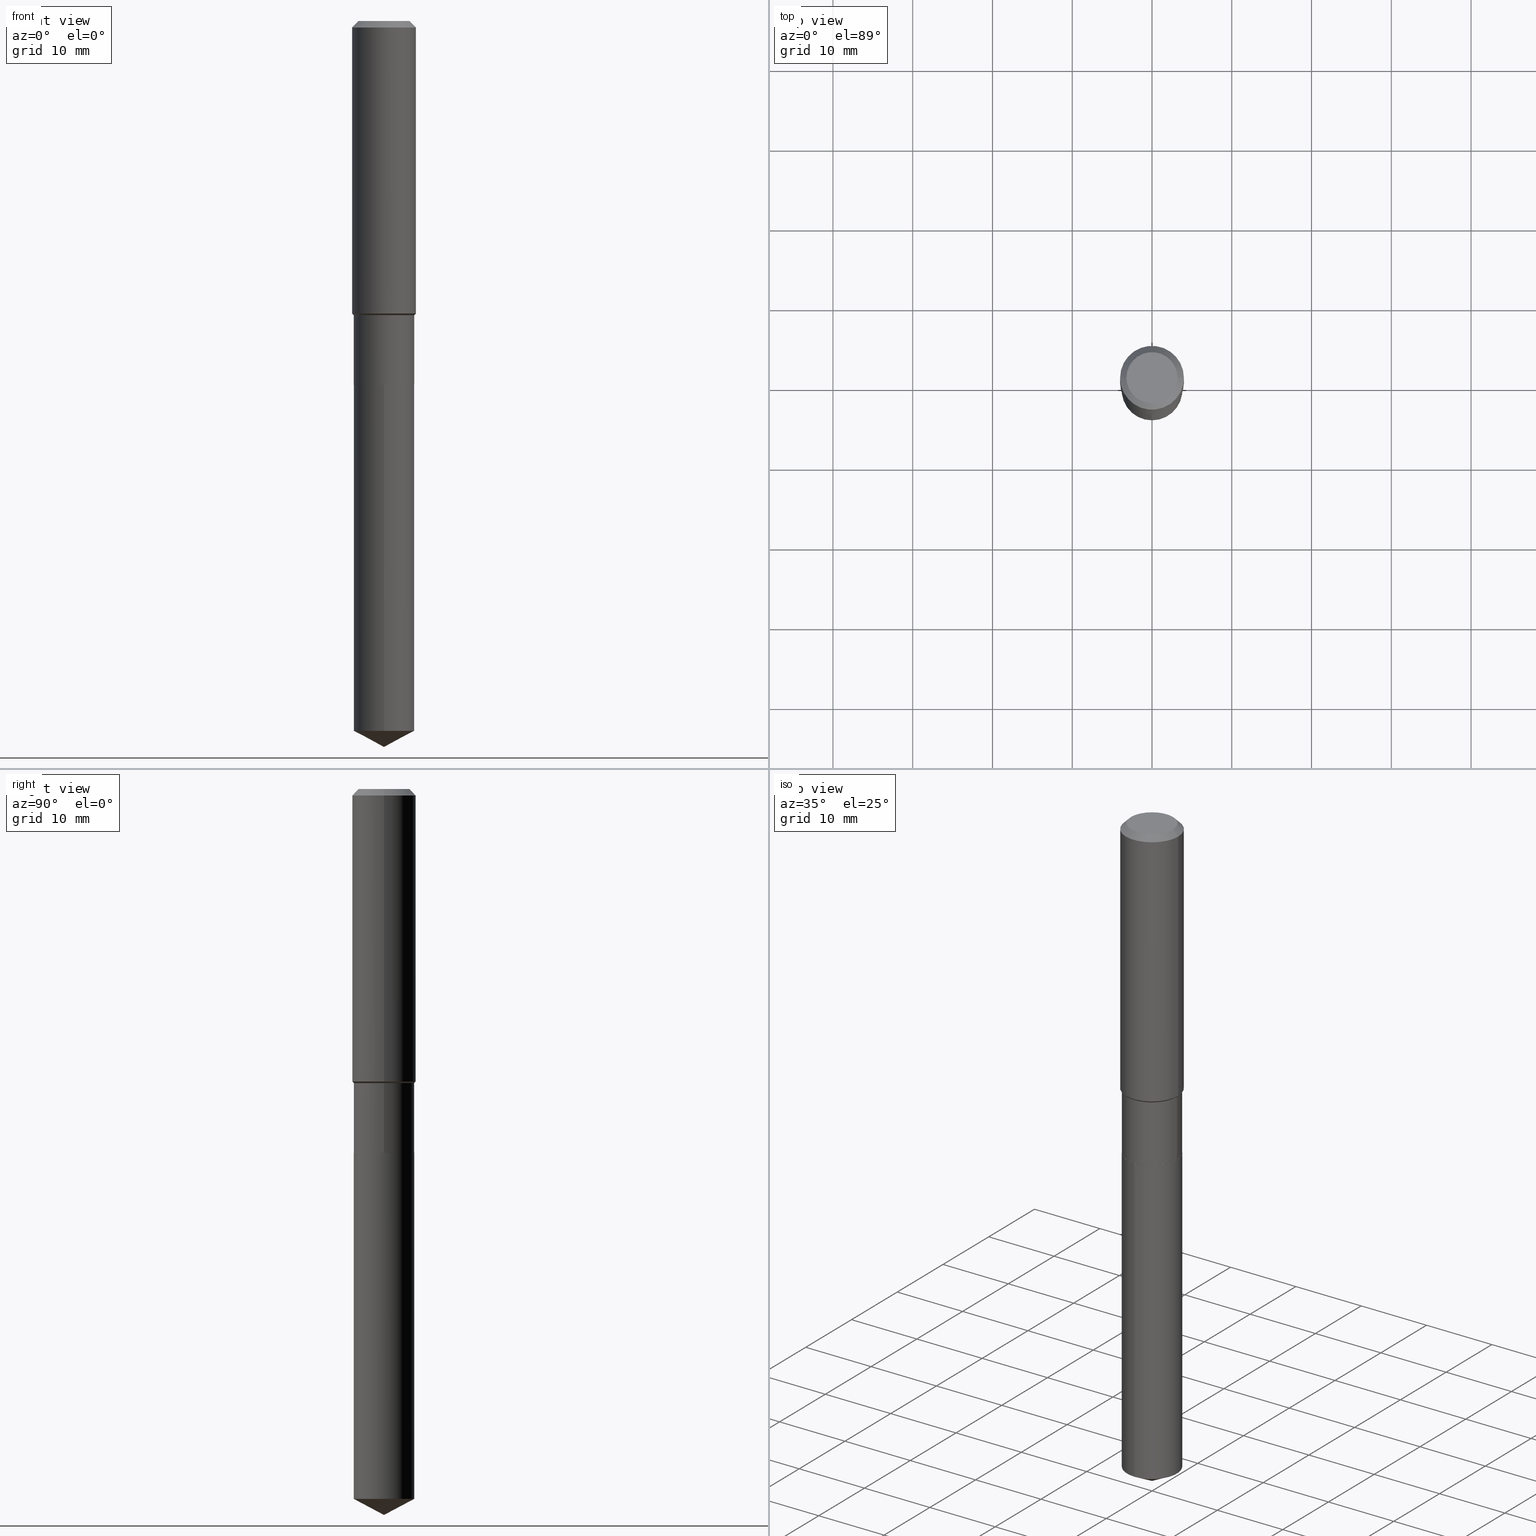
[diagram: canonical four-view strip — front | top / right | iso, engineering-drawing reading convention]
A machine part, canonical four-view strip (front | top / right | iso — engineering-drawing reading convention). The complete STEP part file that produces these views, byte-faithful:
ISO-10303-21;
HEADER;
FILE_DESCRIPTION (( 'STEP AP203' ),
    '1' );
FILE_NAME ('65046.STEP',
    '2024-04-24T20:08:33',
    ( '' ),
    ( '' ),
    'SwSTEP 2.0',
    'SolidWorks 2023',
    '' );
FILE_SCHEMA (( 'CONFIG_CONTROL_DESIGN' ));
ENDSEC;

DATA;
#1 = CARTESIAN_POINT ( 'NONE',  ( 8.761479529919138768E-29, -1.250878922385509424E-14, -3.582699999999999996 ) ) ;
#2 = ORIENTED_EDGE ( 'NONE', *, *, #140, .F. ) ;
#3 = DIRECTION ( 'NONE',  ( 1.000000000000000000, -6.982962677686265922E-15, 4.876176775795935793E-29 ) ) ;
#4 = ORIENTED_EDGE ( 'NONE', *, *, #388, .T. ) ;
#5 = AXIS2_PLACEMENT_3D ( 'NONE', #137, #441, #219 ) ;
#6 = APPLICATION_PROTOCOL_DEFINITION ( 'international standard', 'config_control_design', 1994, #118 ) ;
#7 = EDGE_LOOP ( 'NONE', ( #65, #306 ) ) ;
#8 = DIRECTION ( 'NONE',  ( -2.445496282111016884E-29, 3.491441991753452634E-15, 1.000000000000000000 ) ) ;
#9 = ORIENTED_EDGE ( 'NONE', *, *, #388, .F. ) ;
#10 = CARTESIAN_POINT ( 'NONE',  ( 8.566906304021000333E-29, -1.223113754117293109E-14, -3.503156269023443237 ) ) ;
#11 = VERTEX_POINT ( 'NONE', #308 ) ;
#12 = AXIS2_PLACEMENT_3D ( 'NONE', #458, #346, #16 ) ;
#13 = ADVANCED_FACE ( 'NONE', ( #300 ), #162, .T. ) ;
#14 = AXIS2_PLACEMENT_3D ( 'NONE', #482, #138, #329 ) ;
#15 = CARTESIAN_POINT ( 'NONE',  ( 7.703226739483226971E-31, -1.099816621735597538E-16, -0.03150000000000019451 ) ) ;
#16 = DIRECTION ( 'NONE',  ( -1.000000000000000000, 6.982962677686265922E-15, 0.000000000000000000 ) ) ;
#17 = VERTEX_POINT ( 'NONE', #82 ) ;
#18 = APPROVAL_DATE_TIME ( #439, #197 ) ;
#19 = CARTESIAN_POINT ( 'NONE',  ( 3.529545127967007664E-29, -5.039255016352311783E-15, -1.443299999999999805 ) ) ;
#20 = CONICAL_SURFACE ( 'NONE', #366, 0.1491000000000000103, 0.7853981633975507526 ) ;
#21 = AXIS2_PLACEMENT_3D ( 'NONE', #147, #292, #448 ) ;
#22 = CARTESIAN_POINT ( 'NONE',  ( 0.1260000000000000009, -1.027466422270894443E-15, 3.860086710919128072E-18 ) ) ;
#23 = DIRECTION ( 'NONE',  ( -6.982962677686265922E-15, -1.000000000000000000, 3.652203200085913145E-15 ) ) ;
#24 = DATE_AND_TIME ( #229, #302 ) ;
#25 = CARTESIAN_POINT ( 'NONE',  ( 1.062971932697195743E-15, 0.1495999999999937102, -1.795300000000000562 ) ) ;
#26 = ADVANCED_FACE ( 'NONE', ( #121 ), #20, .T. ) ;
#27 = VECTOR ( 'NONE', #158, 39.37007874015748143 ) ;
#28 = CARTESIAN_POINT ( 'NONE',  ( 0.1495999999999999830, -1.044651216581865404E-15, 7.294760456590720327E-30 ) ) ;
#29 = DIRECTION ( 'NONE',  ( -2.445468806185136877E-29, 3.491481338843145188E-15, 1.000000000000000000 ) ) ;
#30 = DIRECTION ( 'NONE',  ( -6.982962677686267499E-15, -1.000000000000000000, 3.541896320645549825E-15 ) ) ;
#31 = ORIENTED_EDGE ( 'NONE', *, *, #144, .F. ) ;
#32 = PERSON ( 'UNSPECIFIED', 'UNSPECIFIED', 'UNSPECIFIED', ('UNSPECIFIED'), ('UNSPECIFIED'), ('UNSPECIFIED') ) ;
#33 = CARTESIAN_POINT ( 'NONE',  ( 3.529545127967007664E-29, -5.039255016352311783E-15, -1.443299999999999805 ) ) ;
#34 = CIRCLE ( 'NONE', #310, 0.1491000000000000103 ) ;
#35 = AXIS2_PLACEMENT_3D ( 'NONE', #86, #457, #185 ) ;
#36 = DIRECTION ( 'NONE',  ( -1.000000000000000000, 6.982962677686265922E-15, -4.876176775795935793E-29 ) ) ;
#37 = ORIENTED_EDGE ( 'NONE', *, *, #474, .F. ) ;
#38 = DIRECTION ( 'NONE',  ( 1.000000000000000000, -6.982962677686265922E-15, 4.876281427513067258E-29 ) ) ;
#39 = ORIENTED_EDGE ( 'NONE', *, *, #463, .F. ) ;
#40 = CC_DESIGN_PERSON_AND_ORGANIZATION_ASSIGNMENT ( #468, #247, ( #204 ) ) ;
#41 = PERSON_AND_ORGANIZATION ( #32, #286 ) ;
#42 = MANIFOLD_SOLID_BREP ( 'Body-Move/Copy2[2]', #383 ) ;
#43 = VERTEX_POINT ( 'NONE', #303 ) ;
#44 = EDGE_CURVE ( 'NONE', #490, #115, #87, .T. ) ;
#45 = DIRECTION ( 'NONE',  ( -2.445468806185136597E-29, 3.491481338843145583E-15, 1.000000000000000000 ) ) ;
#46 = CARTESIAN_POINT ( 'NONE',  ( 4.390350147744175670E-29, -6.268256447625099205E-15, -1.795300000000000118 ) ) ;
#47 = ORIENTED_EDGE ( 'NONE', *, *, #344, .F. ) ;
#48 =( NAMED_UNIT ( * ) SI_UNIT ( $, .STERADIAN. ) SOLID_ANGLE_UNIT ( ) );
#49 = CARTESIAN_POINT ( 'NONE',  ( 0.1495999999999999830, -6.111488935511037930E-15, -1.451200000000000045 ) ) ;
#50 = DIRECTION ( 'NONE',  ( 1.000000000000000000, -6.982962677686267499E-15, 4.876176775795936353E-29 ) ) ;
#51 = DIRECTION ( 'NONE',  ( -6.165590087286839185E-15, -0.8829475928589269884, 0.4694715627858908058 ) ) ;
#52 = FACE_OUTER_BOUND ( 'NONE', #216, .T. ) ;
#53 = APPROVAL ( #150, 'UNSPECIFIED' ) ;
#54 = DIRECTION ( 'NONE',  ( -2.445468806185136597E-29, 3.491481338843145583E-15, 1.000000000000000000 ) ) ;
#55 = CLOSED_SHELL ( 'NONE', ( #268, #297, #206, #379, #294 ) ) ;
#56 = APPROVAL_DATE_TIME ( #24, #53 ) ;
#57 = DIRECTION ( 'NONE',  ( -2.445496282111016884E-29, 3.491441991753452634E-15, 1.000000000000000000 ) ) ;
#58 = APPROVAL_DATE_TIME ( #429, #319 ) ;
#59 = CARTESIAN_POINT ( 'NONE',  ( 3.548864331535870340E-29, -5.066837718929173118E-15, -1.451200000000000045 ) ) ;
#60 = EDGE_CURVE ( 'NONE', #187, #17, #85, .T. ) ;
#61 = DIRECTION ( 'NONE',  ( -0.7071067811865467956, 7.493145998870351005E-15, 0.7071067811865482389 ) ) ;
#62 = VECTOR ( 'NONE', #279, 39.37007874015748143 ) ;
#63 = CIRCLE ( 'NONE', #415, 0.1496000000000000107 ) ;
#64 = CARTESIAN_POINT ( 'NONE',  ( 4.390350147744175670E-29, -6.268256447625099205E-15, -1.795300000000000118 ) ) ;
#65 = ORIENTED_EDGE ( 'NONE', *, *, #400, .T. ) ;
#66 = APPLICATION_CONTEXT ( 'configuration controlled 3d designs of mechanical parts and assemblies' ) ;
#67 = DIRECTION ( 'NONE',  ( -2.445496282111016884E-29, 3.491441991753452634E-15, 1.000000000000000000 ) ) ;
#68 = ORIENTED_EDGE ( 'NONE', *, *, #109, .F. ) ;
#69 = DIRECTION ( 'NONE',  ( -2.445468806185136877E-29, 3.491481338843145188E-15, 1.000000000000000000 ) ) ;
#70 = FACE_OUTER_BOUND ( 'NONE', #110, .T. ) ;
#71 = AXIS2_PLACEMENT_3D ( 'NONE', #125, #263, #420 ) ;
#72 = CIRCLE ( 'NONE', #128, 0.1260000000000000009 ) ;
#73 = ORIENTED_EDGE ( 'NONE', *, *, #130, .F. ) ;
#74 = CARTESIAN_POINT ( 'NONE',  ( -0.1495999999999999830, -4.603702280245315850E-15, -1.451200000000000045 ) ) ;
#75 = ORIENTED_EDGE ( 'NONE', *, *, #84, .T. ) ;
#76 = EDGE_CURVE ( 'NONE', #348, #339, #190, .T. ) ;
#77 = DIRECTION ( 'NONE',  ( -2.445468806185136597E-29, 3.491481338843145583E-15, 1.000000000000000000 ) ) ;
#78 = CIRCLE ( 'NONE', #127, 0.1496000000000000107 ) ;
#79 = ORIENTED_EDGE ( 'NONE', *, *, #97, .T. ) ;
#80 = CONICAL_SURFACE ( 'NONE', #345, 0.1495999999999999830, 0.7853981633974472798 ) ;
#81 = DIRECTION ( 'NONE',  ( -2.445468806185136597E-29, 3.491481338843145583E-15, 1.000000000000000000 ) ) ;
#82 = CARTESIAN_POINT ( 'NONE',  ( 0.1575000000000001676, -6.139071638087900053E-15, -1.443299999999999805 ) ) ;
#83 = ADVANCED_FACE ( 'NONE', ( #455 ), #195, .T. ) ;
#84 = EDGE_CURVE ( 'NONE', #228, #260, #270, .T. ) ;
#85 = LINE ( 'NONE', #49, #384 ) ;
#86 = CARTESIAN_POINT ( 'NONE',  ( 0.000000000000000000, 0.000000000000000000, 0.000000000000000000 ) ) ;
#87 = LINE ( 'NONE', #464, #27 ) ;
#88 = VECTOR ( 'NONE', #29, 39.37007874015748143 ) ;
#89 = CARTESIAN_POINT ( 'NONE',  ( -0.1495999999999999830, -4.003865786232063558E-15, -1.451200000000000045 ) ) ;
#90 = DIRECTION ( 'NONE',  ( 0.7071067811865452413, -7.319954787623248157E-15, -0.7071067811865497932 ) ) ;
#91 = COORDINATED_UNIVERSAL_TIME_OFFSET ( 5, 0, .BEHIND. ) ;
#92 = EDGE_CURVE ( 'NONE', #373, #117, #201, .T. ) ;
#93 = CYLINDRICAL_SURFACE ( 'NONE', #177, 0.1496000000000000107 ) ;
#94 = CIRCLE ( 'NONE', #155, 0.1491000000000000103 ) ;
#95 = LOCAL_TIME ( 16, 8, 33.00000000000000000, #349 ) ;
#96 = PERSON_AND_ORGANIZATION ( #32, #286 ) ;
#97 = EDGE_CURVE ( 'NONE', #339, #148, #133, .T. ) ;
#98 = LINE ( 'NONE', #472, #336 ) ;
#99 = LINE ( 'NONE', #28, #134 ) ;
#100 = LINE ( 'NONE', #409, #171 ) ;
#101 = APPROVAL_PERSON_ORGANIZATION ( #265, #53, #296 ) ;
#102 = CARTESIAN_POINT ( 'NONE',  ( -4.719860820353100843E-47, 6.738710358733633822E-33, 1.930043355456229866E-18 ) ) ;
#103 = ORIENTED_EDGE ( 'NONE', *, *, #144, .T. ) ;
#104 = PRODUCT_DEFINITION_SHAPE ( 'NONE', 'NONE',  #412 ) ;
#105 = CC_DESIGN_PERSON_AND_ORGANIZATION_ASSIGNMENT ( #237, #434, ( #204 ) ) ;
#106 = CYLINDRICAL_SURFACE ( 'NONE', #21, 0.1495999999999999830 ) ;
#107 = EDGE_LOOP ( 'NONE', ( #2, #410, #236, #253 ) ) ;
#108 = DIRECTION ( 'NONE',  ( -2.445468806185136597E-29, 3.491481338843145583E-15, 1.000000000000000000 ) ) ;
#109 = EDGE_CURVE ( 'NONE', #17, #43, #203, .T. ) ;
#110 = EDGE_LOOP ( 'NONE', ( #408, #335, #31 ) ) ;
#111 = VECTOR ( 'NONE', #393, 39.37007874015748143 ) ;
#112 = CARTESIAN_POINT ( 'NONE',  ( 4.390350147744175670E-29, -6.268256447625099205E-15, -1.795300000000000118 ) ) ;
#113 = EDGE_CURVE ( 'NONE', #192, #187, #99, .T. ) ;
#114 = CONICAL_SURFACE ( 'NONE', #273, 0.1575000000000000011, 0.7853981633974450594 ) ;
#115 = VERTEX_POINT ( 'NONE', #25 ) ;
#116 = CARTESIAN_POINT ( 'NONE',  ( 1.062971932697195546E-15, 0.1495999999999878260, -3.503156269023444125 ) ) ;
#117 = VERTEX_POINT ( 'NONE', #478 ) ;
#118 = APPLICATION_CONTEXT ( 'configuration controlled 3d designs of mechanical parts and assemblies' ) ;
#119 = CYLINDRICAL_SURFACE ( 'NONE', #251, 0.1575000000000000844 ) ;
#120 = ORIENTED_EDGE ( 'NONE', *, *, #406, .F. ) ;
#121 = FACE_OUTER_BOUND ( 'NONE', #107, .T. ) ;
#122 = AXIS2_PLACEMENT_3D ( 'NONE', #33, #489, #178 ) ;
#123 =( LENGTH_UNIT ( ) NAMED_UNIT ( * ) SI_UNIT ( $, .METRE. ) );
#124 = ORIENTED_EDGE ( 'NONE', *, *, #391, .T. ) ;
#125 = CARTESIAN_POINT ( 'NONE',  ( 0.000000000000000000, 0.000000000000000000, 0.000000000000000000 ) ) ;
#126 = FACE_OUTER_BOUND ( 'NONE', #469, .T. ) ;
#127 = AXIS2_PLACEMENT_3D ( 'NONE', #164, #275, #161 ) ;
#128 = AXIS2_PLACEMENT_3D ( 'NONE', #290, #108, #38 ) ;
#129 = DIRECTION ( 'NONE',  ( 1.000000000000000000, -6.982962677686265133E-15, 0.000000000000000000 ) ) ;
#130 = EDGE_CURVE ( 'NONE', #148, #115, #243, .T. ) ;
#131 = CARTESIAN_POINT ( 'NONE',  ( 0.1496000000000000107, -7.311161923537544091E-15, -1.794800000000000173 ) ) ;
#132 = CALENDAR_DATE ( 2024, 24, 4 ) ;
#133 = LINE ( 'NONE', #238, #272 ) ;
#134 = VECTOR ( 'NONE', #248, 39.37007874015748143 ) ;
#135 = DATE_TIME_ROLE ( 'classification_date' ) ;
#136 = LINE ( 'NONE', #89, #375 ) ;
#137 = CARTESIAN_POINT ( 'NONE',  ( 3.548864331535870340E-29, -5.066837718929173118E-15, -1.451200000000000045 ) ) ;
#138 = DIRECTION ( 'NONE',  ( -2.445468806185136597E-29, 3.491481338843145583E-15, 1.000000000000000000 ) ) ;
#139 = ORIENTED_EDGE ( 'NONE', *, *, #313, .T. ) ;
#140 = EDGE_CURVE ( 'NONE', #11, #447, #98, .T. ) ;
#141 = AXIS2_PLACEMENT_3D ( 'NONE', #183, #252, #481 ) ;
#142 = CYLINDRICAL_SURFACE ( 'NONE', #186, 0.1496000000000000107 ) ;
#143 = EDGE_LOOP ( 'NONE', ( #182, #298, #222, #124 ) ) ;
#144 = EDGE_CURVE ( 'NONE', #339, #490, #78, .T. ) ;
#145 = DIRECTION ( 'NONE',  ( 6.982962677686265922E-15, 1.000000000000000000, -3.491441991753452240E-15 ) ) ;
#146 = ORIENTED_EDGE ( 'NONE', *, *, #60, .F. ) ;
#147 = CARTESIAN_POINT ( 'NONE',  ( 0.000000000000000000, 0.000000000000000000, 0.000000000000000000 ) ) ;
#148 = VERTEX_POINT ( 'NONE', #172 ) ;
#149 = MECHANICAL_CONTEXT ( 'NONE', #66, 'mechanical' ) ;
#150 = APPROVAL_STATUS ( 'not_yet_approved' ) ;
#151 = ORIENTED_EDGE ( 'NONE', *, *, #193, .T. ) ;
#152 = EDGE_CURVE ( 'NONE', #176, #11, #34, .T. ) ;
#153 = ORIENTED_EDGE ( 'NONE', *, *, #130, .T. ) ;
#154 = FACE_OUTER_BOUND ( 'NONE', #377, .T. ) ;
#155 = AXIS2_PLACEMENT_3D ( 'NONE', #246, #54, #357 ) ;
#156 = ORIENTED_EDGE ( 'NONE', *, *, #391, .F. ) ;
#157 = CIRCLE ( 'NONE', #386, 0.1496000000000000107 ) ;
#158 = DIRECTION ( 'NONE',  ( -2.445496282111017164E-29, 3.491441991753452240E-15, 1.000000000000000000 ) ) ;
#159 = ORIENTED_EDGE ( 'NONE', *, *, #97, .F. ) ;
#160 = PERSON_AND_ORGANIZATION ( #32, #286 ) ;
#161 = DIRECTION ( 'NONE',  ( -6.982962677686266711E-15, -1.000000000000000000, 3.652203200085913145E-15 ) ) ;
#162 = CONICAL_SURFACE ( 'NONE', #12, 0.1575000000000000011, 0.7853981633974450594 ) ;
#163 = CONICAL_SURFACE ( 'NONE', #461, 74.04434902938376695, 1.082104136236487824 ) ;
#164 = CARTESIAN_POINT ( 'NONE',  ( 8.566906304021000333E-29, -1.223113754117293109E-14, -3.503156269023443237 ) ) ;
#165 = DATE_TIME_ROLE ( 'creation_date' ) ;
#166 = CARTESIAN_POINT ( 'NONE',  ( -8.751795098308368870E-28, 1.249494862683404824E-13, 35.78737874015747877 ) ) ;
#167 = SECURITY_CLASSIFICATION_LEVEL ( 'unclassified' ) ;
#168 = DIRECTION ( 'NONE',  ( -0.7071067811866199593, 7.493145998870616062E-15, 0.7071067811864750752 ) ) ;
#169 = VECTOR ( 'NONE', #90, 39.37007874015748143 ) ;
#170 = AXIS2_PLACEMENT_3D ( 'NONE', #194, #342, #234 ) ;
#171 = VECTOR ( 'NONE', #69, 39.37007874015748143 ) ;
#172 = CARTESIAN_POINT ( 'NONE',  ( -1.044651216581821425E-15, -0.1496000000000062835, -1.795299999999999452 ) ) ;
#173 = CARTESIAN_POINT ( 'NONE',  ( -1.044651216581780009E-15, -0.1496000000000122510, -3.503156269023442793 ) ) ;
#174 = EDGE_LOOP ( 'NONE', ( #288, #184, #449, #156 ) ) ;
#175 = FACE_OUTER_BOUND ( 'NONE', #445, .T. ) ;
#176 = VERTEX_POINT ( 'NONE', #321 ) ;
#177 = AXIS2_PLACEMENT_3D ( 'NONE', #242, #57, #205 ) ;
#178 = DIRECTION ( 'NONE',  ( 1.000000000000000000, -6.982962677686267499E-15, 0.000000000000000000 ) ) ;
#179 = ORIENTED_EDGE ( 'NONE', *, *, #473, .F. ) ;
#180 = EDGE_CURVE ( 'NONE', #176, #192, #354, .T. ) ;
#181 = CARTESIAN_POINT ( 'NONE',  ( 7.703226739483226971E-31, -1.099816621735597538E-16, -0.03150000000000019451 ) ) ;
#182 = ORIENTED_EDGE ( 'NONE', *, *, #84, .F. ) ;
#183 = CARTESIAN_POINT ( 'NONE',  ( 7.703226739483226971E-31, -1.099816621735597538E-16, -0.03150000000000019451 ) ) ;
#184 = ORIENTED_EDGE ( 'NONE', *, *, #406, .T. ) ;
#185 = DIRECTION ( 'NONE',  ( 1.000000000000000000, 0.000000000000000000, 0.000000000000000000 ) ) ;
#186 = AXIS2_PLACEMENT_3D ( 'NONE', #254, #446, #416 ) ;
#187 = VERTEX_POINT ( 'NONE', #281 ) ;
#188 = LINE ( 'NONE', #452, #235 ) ;
#189 = CC_DESIGN_DATE_AND_TIME_ASSIGNMENT ( #278, #165, ( #412 ) ) ;
#190 = LINE ( 'NONE', #380, #394 ) ;
#191 = FACE_OUTER_BOUND ( 'NONE', #220, .T. ) ;
#192 = VERTEX_POINT ( 'NONE', #131 ) ;
#193 = EDGE_CURVE ( 'NONE', #360, #43, #136, .T. ) ;
#194 = CARTESIAN_POINT ( 'NONE',  ( 3.548864331535870340E-29, -5.066837718929173118E-15, -1.451200000000000045 ) ) ;
#195 = CYLINDRICAL_SURFACE ( 'NONE', #71, 0.1495999999999999830 ) ;
#196 = CC_DESIGN_APPROVAL ( #197, ( #462 ) ) ;
#197 = APPROVAL ( #309, 'UNSPECIFIED' ) ;
#198 = MANIFOLD_SOLID_BREP ( 'Body-Move/Copy2[1]', #55 ) ;
#199 = PERSON_AND_ORGANIZATION ( #32, #286 ) ;
#200 = EDGE_LOOP ( 'NONE', ( #211, #232, #39, #363 ) ) ;
#201 = LINE ( 'NONE', #350, #62 ) ;
#202 = CARTESIAN_POINT ( 'NONE',  ( 0.1575000000000000011, -1.209798283909146741E-15, -0.03150000000000019451 ) ) ;
#203 = CIRCLE ( 'NONE', #459, 0.1575000000000001676 ) ;
#204 = PRODUCT_DEFINITION_FORMATION_WITH_SPECIFIED_SOURCE ( 'ANY', '', #484, .NOT_KNOWN. ) ;
#205 = DIRECTION ( 'NONE',  ( -6.982962677686266711E-15, -1.000000000000000000, 3.652203200085913145E-15 ) ) ;
#206 = ADVANCED_FACE ( 'NONE', ( #126 ), #225, .T. ) ;
#207 = DIRECTION ( 'NONE',  ( -2.445468806185136597E-29, 3.491481338843145583E-15, 1.000000000000000000 ) ) ;
#208 = DIRECTION ( 'NONE',  ( -2.445496282111016884E-29, 3.491441991753452634E-15, 1.000000000000000000 ) ) ;
#209 =( GEOMETRIC_REPRESENTATION_CONTEXT ( 3 ) GLOBAL_UNCERTAINTY_ASSIGNED_CONTEXT ( ( #460 ) ) GLOBAL_UNIT_ASSIGNED_CONTEXT ( ( #419, #231, #48 ) ) REPRESENTATION_CONTEXT ( 'NONE', 'WORKASPACE' ) );
#210 = PLANE ( 'NONE',  #337 ) ;
#211 = ORIENTED_EDGE ( 'NONE', *, *, #109, .T. ) ;
#212 = EDGE_CURVE ( 'NONE', #11, #176, #94, .T. ) ;
#213 = DIRECTION ( 'NONE',  ( 2.438088387897960049E-29, -3.491481338843145188E-15, -1.000000000000000000 ) ) ;
#214 = EDGE_LOOP ( 'NONE', ( #103, #284, #73, #159 ) ) ;
#215 = FACE_OUTER_BOUND ( 'NONE', #7, .T. ) ;
#216 = EDGE_LOOP ( 'NONE', ( #295, #370, #9, #262 ) ) ;
#217 = CIRCLE ( 'NONE', #141, 0.1575000000000000011 ) ;
#218 = CC_DESIGN_SECURITY_CLASSIFICATION ( #462, ( #204 ) ) ;
#219 = DIRECTION ( 'NONE',  ( 1.000000000000000000, -6.982962677686262766E-15, 0.000000000000000000 ) ) ;
#220 = EDGE_LOOP ( 'NONE', ( #291, #405 ) ) ;
#221 = CARTESIAN_POINT ( 'NONE',  ( -0.1260000000000000009, 9.348441284752484904E-16, 3.860086710906114178E-18 ) ) ;
#222 = ORIENTED_EDGE ( 'NONE', *, *, #92, .T. ) ;
#223 = DIRECTION ( 'NONE',  ( 1.000000000000000000, -6.982962677686265922E-15, 0.000000000000000000 ) ) ;
#224 = EDGE_LOOP ( 'NONE', ( #413, #139, #374, #120 ) ) ;
#225 = CONICAL_SURFACE ( 'NONE', #301, 74.04434902938376695, 1.082104136236487824 ) ;
#226 = CARTESIAN_POINT ( 'NONE',  ( 4.390350147744175670E-29, -6.268256447625099205E-15, -1.795300000000000118 ) ) ;
#227 = CC_DESIGN_APPROVAL ( #53, ( #412 ) ) ;
#228 = VERTEX_POINT ( 'NONE', #22 ) ;
#229 = CALENDAR_DATE ( 2024, 24, 4 ) ;
#230 = ORIENTED_EDGE ( 'NONE', *, *, #92, .F. ) ;
#231 =( NAMED_UNIT ( * ) PLANE_ANGLE_UNIT ( ) SI_UNIT ( $, .RADIAN. ) );
#232 = ORIENTED_EDGE ( 'NONE', *, *, #398, .T. ) ;
#233 = DESIGN_CONTEXT ( 'detailed design', #118, 'design' ) ;
#234 = DIRECTION ( 'NONE',  ( 1.000000000000000000, -6.982962677686262766E-15, 0.000000000000000000 ) ) ;
#235 = VECTOR ( 'NONE', #340, 39.37007874015748143 ) ;
#236 = ORIENTED_EDGE ( 'NONE', *, *, #180, .T. ) ;
#237 = PERSON_AND_ORGANIZATION ( #32, #286 ) ;
#238 = CARTESIAN_POINT ( 'NONE',  ( -1.044651216581821622E-15, -0.1496000000000062835, -1.795299999999999452 ) ) ;
#239 = APPROVAL_ROLE ( '' ) ;
#240 = DIRECTION ( 'NONE',  ( -2.445468806185136597E-29, 3.491481338843145583E-15, 1.000000000000000000 ) ) ;
#241 = EDGE_CURVE ( 'NONE', #447, #192, #257, .T. ) ;
#242 = CARTESIAN_POINT ( 'NONE',  ( 4.390350147744175670E-29, -6.268256447625099205E-15, -1.795300000000000118 ) ) ;
#243 = CIRCLE ( 'NONE', #280, 0.1496000000000000107 ) ;
#244 = LOCAL_TIME ( 16, 8, 33.00000000000000000, #91 ) ;
#245 = CALENDAR_DATE ( 2024, 24, 4 ) ;
#246 = CARTESIAN_POINT ( 'NONE',  ( 4.390350147744175670E-29, -6.268256447625099205E-15, -1.795300000000000118 ) ) ;
#247 = PERSON_AND_ORGANIZATION_ROLE ( 'creator' ) ;
#248 = DIRECTION ( 'NONE',  ( -2.445468806185136877E-29, 3.491481338843145188E-15, 1.000000000000000000 ) ) ;
#249 = EDGE_CURVE ( 'NONE', #17, #260, #438, .T. ) ;
#250 = FACE_OUTER_BOUND ( 'NONE', #174, .T. ) ;
#251 = AXIS2_PLACEMENT_3D ( 'NONE', #466, #81, #50 ) ;
#252 = DIRECTION ( 'NONE',  ( -2.445468806185136597E-29, 3.491481338843145583E-15, 1.000000000000000000 ) ) ;
#253 = ORIENTED_EDGE ( 'NONE', *, *, #241, .F. ) ;
#254 = CARTESIAN_POINT ( 'NONE',  ( 4.390350147744175670E-29, -6.268256447625099205E-15, -1.795300000000000118 ) ) ;
#255 = ORIENTED_EDGE ( 'NONE', *, *, #113, .T. ) ;
#256 = CARTESIAN_POINT ( 'NONE',  ( -8.751795098308368870E-28, 1.249494862683404824E-13, 35.78737874015747877 ) ) ;
#257 = CIRCLE ( 'NONE', #322, 0.1496000000000000107 ) ;
#258 = CIRCLE ( 'NONE', #404, 0.1496000000000000107 ) ;
#259 = DIRECTION ( 'NONE',  ( -6.982962677686265922E-15, -1.000000000000000000, 3.652203200085913145E-15 ) ) ;
#260 = VERTEX_POINT ( 'NONE', #202 ) ;
#261 = LENGTH_MEASURE_WITH_UNIT ( LENGTH_MEASURE( 0.02539999999999999897 ), #123 );
#262 = ORIENTED_EDGE ( 'NONE', *, *, #180, .F. ) ;
#263 = DIRECTION ( 'NONE',  ( -2.445468806185136597E-29, 3.491481338843145583E-15, 1.000000000000000000 ) ) ;
#264 = ADVANCED_FACE ( 'NONE', ( #52 ), #421, .T. ) ;
#265 = PERSON_AND_ORGANIZATION ( #32, #286 ) ;
#266 = CIRCLE ( 'NONE', #422, 0.1495999999999999830 ) ;
#267 = ORIENTED_EDGE ( 'NONE', *, *, #44, .F. ) ;
#268 = ADVANCED_FACE ( 'NONE', ( #435 ), #93, .T. ) ;
#269 = EDGE_LOOP ( 'NONE', ( #332, #443, #255, #330 ) ) ;
#270 = LINE ( 'NONE', #387, #169 ) ;
#271 = CALENDAR_DATE ( 2024, 24, 4 ) ;
#272 = VECTOR ( 'NONE', #274, 39.37007874015748143 ) ;
#273 = AXIS2_PLACEMENT_3D ( 'NONE', #181, #407, #331 ) ;
#274 = DIRECTION ( 'NONE',  ( -2.445496282111017164E-29, 3.491441991753452240E-15, 1.000000000000000000 ) ) ;
#275 = DIRECTION ( 'NONE',  ( -2.445496282111016884E-29, 3.491441991753452634E-15, 1.000000000000000000 ) ) ;
#276 = CC_DESIGN_PERSON_AND_ORGANIZATION_ASSIGNMENT ( #41, #338, ( #484 ) ) ;
#277 = CARTESIAN_POINT ( 'NONE',  ( 4.390350147744175670E-29, -6.268256447625099205E-15, -1.795300000000000118 ) ) ;
#278 = DATE_AND_TIME ( #132, #351 ) ;
#279 = DIRECTION ( 'NONE',  ( -0.7071067811865452413, 2.468850131082233000E-15, -0.7071067811865497932 ) ) ;
#280 = AXIS2_PLACEMENT_3D ( 'NONE', #440, #402, #23 ) ;
#281 = CARTESIAN_POINT ( 'NONE',  ( 0.1495999999999999830, -6.111488935511037930E-15, -1.451200000000000045 ) ) ;
#282 = DIRECTION ( 'NONE',  ( -2.445468806185136597E-29, 3.491481338843145583E-15, 1.000000000000000000 ) ) ;
#283 = CARTESIAN_POINT ( 'NONE',  ( -9.439721640706201686E-47, 1.347742071746726764E-32, 3.860086710912459732E-18 ) ) ;
#284 = ORIENTED_EDGE ( 'NONE', *, *, #44, .T. ) ;
#285 = VECTOR ( 'NONE', #315, 39.37007874015748143 ) ;
#286 = ORGANIZATION ( 'UNSPECIFIED', 'UNSPECIFIED', '' ) ;
#287 = PLANE ( 'NONE',  #437 ) ;
#288 = ORIENTED_EDGE ( 'NONE', *, *, #398, .F. ) ;
#289 = EDGE_CURVE ( 'NONE', #187, #360, #266, .T. ) ;
#290 = CARTESIAN_POINT ( 'NONE',  ( -9.439721640706201686E-47, 1.347742071746726764E-32, 3.860086710912459732E-18 ) ) ;
#291 = ORIENTED_EDGE ( 'NONE', *, *, #152, .F. ) ;
#292 = DIRECTION ( 'NONE',  ( -2.445468806185136597E-29, 3.491481338843145583E-15, 1.000000000000000000 ) ) ;
#293 = CONICAL_SURFACE ( 'NONE', #170, 0.1495999999999999830, 0.7853981633974472798 ) ;
#294 = ADVANCED_FACE ( 'NONE', ( #175 ), #210, .F. ) ;
#295 = ORIENTED_EDGE ( 'NONE', *, *, #152, .T. ) ;
#296 = APPROVAL_ROLE ( '' ) ;
#297 = ADVANCED_FACE ( 'NONE', ( #70 ), #163, .T. ) ;
#298 = ORIENTED_EDGE ( 'NONE', *, *, #400, .F. ) ;
#299 = DIRECTION ( 'NONE',  ( -6.982962677686266711E-15, -1.000000000000000000, 3.652203200085913145E-15 ) ) ;
#300 = FACE_OUTER_BOUND ( 'NONE', #143, .T. ) ;
#301 = AXIS2_PLACEMENT_3D ( 'NONE', #166, #208, #318 ) ;
#302 = LOCAL_TIME ( 16, 8, 33.00000000000000000, #423 ) ;
#303 = CARTESIAN_POINT ( 'NONE',  ( -0.1575000000000001676, -3.920150207530152602E-15, -1.443299999999999805 ) ) ;
#304 = EDGE_CURVE ( 'NONE', #447, #360, #327, .T. ) ;
#305 = PLANE ( 'NONE',  #323 ) ;
#306 = ORIENTED_EDGE ( 'NONE', *, *, #344, .T. ) ;
#307 = PERSON_AND_ORGANIZATION_ROLE ( 'creator' ) ;
#308 = CARTESIAN_POINT ( 'NONE',  ( -0.1491000000000000103, -5.206188001432678554E-15, -1.795300000000000118 ) ) ;
#309 = APPROVAL_STATUS ( 'not_yet_approved' ) ;
#310 = AXIS2_PLACEMENT_3D ( 'NONE', #312, #432, #129 ) ;
#311 = CIRCLE ( 'NONE', #5, 0.1495999999999999830 ) ;
#312 = CARTESIAN_POINT ( 'NONE',  ( 4.390350147744175670E-29, -6.268256447625099205E-15, -1.795300000000000118 ) ) ;
#313 = EDGE_CURVE ( 'NONE', #360, #187, #311, .T. ) ;
#314 = APPROVAL_STATUS ( 'not_yet_approved' ) ;
#315 = DIRECTION ( 'NONE',  ( 0.7071067811866199593, -2.468850131083015945E-15, 0.7071067811864750752 ) ) ;
#316 = ADVANCED_FACE ( 'NONE', ( #215 ), #287, .F. ) ;
#317 = PERSON_AND_ORGANIZATION_ROLE ( 'classification_officer' ) ;
#318 = DIRECTION ( 'NONE',  ( -6.982962677686267499E-15, -1.000000000000000000, 3.541896320645549825E-15 ) ) ;
#319 = APPROVAL ( #314, 'UNSPECIFIED' ) ;
#320 = APPROVAL_ROLE ( '' ) ;
#321 = CARTESIAN_POINT ( 'NONE',  ( 0.1491000000000000103, -7.309416182868121799E-15, -1.795300000000000118 ) ) ;
#322 = AXIS2_PLACEMENT_3D ( 'NONE', #396, #324, #471 ) ;
#323 = AXIS2_PLACEMENT_3D ( 'NONE', #226, #376, #3 ) ;
#324 = DIRECTION ( 'NONE',  ( -2.445468806185136597E-29, 3.491481338843145583E-15, 1.000000000000000000 ) ) ;
#325 = DIRECTION ( 'NONE',  ( 1.000000000000000000, -6.982962677686268288E-15, 0.000000000000000000 ) ) ;
#326 = ORIENTED_EDGE ( 'NONE', *, *, #76, .T. ) ;
#327 = LINE ( 'NONE', #486, #88 ) ;
#328 = ORIENTED_EDGE ( 'NONE', *, *, #289, .F. ) ;
#329 = DIRECTION ( 'NONE',  ( 1.000000000000000000, -6.982962677686267499E-15, 4.876176775795936353E-29 ) ) ;
#330 = ORIENTED_EDGE ( 'NONE', *, *, #313, .F. ) ;
#331 = DIRECTION ( 'NONE',  ( -1.000000000000000000, 6.982962677686265922E-15, 0.000000000000000000 ) ) ;
#332 = ORIENTED_EDGE ( 'NONE', *, *, #304, .F. ) ;
#333 = ADVANCED_FACE ( 'NONE', ( #369 ), #114, .T. ) ;
#334 = APPLICATION_PROTOCOL_DEFINITION ( 'international standard', 'config_control_design', 1994, #66 ) ;
#335 = ORIENTED_EDGE ( 'NONE', *, *, #473, .T. ) ;
#336 = VECTOR ( 'NONE', #168, 39.37007874015748143 ) ;
#337 = AXIS2_PLACEMENT_3D ( 'NONE', #64, #359, #145 ) ;
#338 = PERSON_AND_ORGANIZATION_ROLE ( 'design_owner' ) ;
#339 = VERTEX_POINT ( 'NONE', #173 ) ;
#340 = DIRECTION ( 'NONE',  ( 6.273719981627770021E-15, 0.8829475928589302081, 0.4694715627858845886 ) ) ;
#341 = ORIENTED_EDGE ( 'NONE', *, *, #113, .F. ) ;
#342 = DIRECTION ( 'NONE',  ( -2.445468806185136597E-29, 3.491481338843145583E-15, 1.000000000000000000 ) ) ;
#343 = ORIENTED_EDGE ( 'NONE', *, *, #367, .F. ) ;
#344 = EDGE_CURVE ( 'NONE', #228, #373, #72, .T. ) ;
#345 = AXIS2_PLACEMENT_3D ( 'NONE', #454, #77, #381 ) ;
#346 = DIRECTION ( 'NONE',  ( 2.445468806185136597E-29, -3.491481338843145583E-15, -1.000000000000000000 ) ) ;
#347 = DATE_AND_TIME ( #245, #353 ) ;
#348 = VERTEX_POINT ( 'NONE', #1 ) ;
#349 = COORDINATED_UNIVERSAL_TIME_OFFSET ( 5, 0, .BEHIND. ) ;
#350 = CARTESIAN_POINT ( 'NONE',  ( -0.1575000000000000011, 9.898349595620272334E-16, -0.03150000000000019451 ) ) ;
#351 = LOCAL_TIME ( 16, 8, 33.00000000000000000, #475 ) ;
#352 = DIRECTION ( 'NONE',  ( 1.000000000000000000, -6.982962677686265133E-15, 0.000000000000000000 ) ) ;
#353 = LOCAL_TIME ( 16, 8, 33.00000000000000000, #389 ) ;
#354 = LINE ( 'NONE', #430, #285 ) ;
#355 = ADVANCED_FACE ( 'NONE', ( #362 ), #106, .T. ) ;
#356 = DIRECTION ( 'NONE',  ( 1.000000000000000000, -6.982962677686262766E-15, 0.000000000000000000 ) ) ;
#357 = DIRECTION ( 'NONE',  ( 1.000000000000000000, -6.982962677686265133E-15, 0.000000000000000000 ) ) ;
#358 = AXIS2_PLACEMENT_3D ( 'NONE', #283, #442, #364 ) ;
#359 = DIRECTION ( 'NONE',  ( 2.445496282111016604E-29, -3.491441991753452240E-15, -1.000000000000000000 ) ) ;
#360 = VERTEX_POINT ( 'NONE', #74 ) ;
#361 = CC_DESIGN_PERSON_AND_ORGANIZATION_ASSIGNMENT ( #160, #307, ( #412 ) ) ;
#362 = FACE_OUTER_BOUND ( 'NONE', #488, .T. ) ;
#363 = ORIENTED_EDGE ( 'NONE', *, *, #249, .F. ) ;
#364 = DIRECTION ( 'NONE',  ( 1.000000000000000000, -6.982962677686265922E-15, 4.876281427513067258E-29 ) ) ;
#365 = ORIENTED_EDGE ( 'NONE', *, *, #474, .T. ) ;
#366 = AXIS2_PLACEMENT_3D ( 'NONE', #46, #424, #467 ) ;
#367 = EDGE_CURVE ( 'NONE', #115, #148, #258, .T. ) ;
#368 = CC_DESIGN_APPROVAL ( #319, ( #204 ) ) ;
#369 = FACE_OUTER_BOUND ( 'NONE', #485, .T. ) ;
#370 = ORIENTED_EDGE ( 'NONE', *, *, #140, .T. ) ;
#371 = PRODUCT_RELATED_PRODUCT_CATEGORY ( 'detail', '', ( #484 ) ) ;
#372 = FACE_OUTER_BOUND ( 'NONE', #426, .T. ) ;
#373 = VERTEX_POINT ( 'NONE', #221 ) ;
#374 = ORIENTED_EDGE ( 'NONE', *, *, #60, .T. ) ;
#375 = VECTOR ( 'NONE', #61, 39.37007874015748143 ) ;
#376 = DIRECTION ( 'NONE',  ( -2.438088387897960049E-29, 3.491481338843145188E-15, 1.000000000000000000 ) ) ;
#377 = EDGE_LOOP ( 'NONE', ( #427, #151, #68, #146 ) ) ;
#378 = CARTESIAN_POINT ( 'NONE',  ( -0.1496000000000000107, -4.603702280245315061E-15, -1.794800000000000173 ) ) ;
#379 = ADVANCED_FACE ( 'NONE', ( #372 ), #142, .T. ) ;
#380 = CARTESIAN_POINT ( 'NONE',  ( 8.761380874859673761E-29, -1.250893050351534427E-14, -3.582699999999999996 ) ) ;
#381 = DIRECTION ( 'NONE',  ( 1.000000000000000000, -6.982962677686262766E-15, 0.000000000000000000 ) ) ;
#382 = DIRECTION ( 'NONE',  ( 0.7071067811865467956, -2.468850131082249172E-15, 0.7071067811865482389 ) ) ;
#383 = CLOSED_SHELL ( 'NONE', ( #264, #333, #483, #480, #355, #83, #456, #399, #13, #316, #436, #26 ) ) ;
#384 = VECTOR ( 'NONE', #382, 39.37007874015748143 ) ;
#385 = FACE_OUTER_BOUND ( 'NONE', #200, .T. ) ;
#386 = AXIS2_PLACEMENT_3D ( 'NONE', #444, #282, #325 ) ;
#387 = CARTESIAN_POINT ( 'NONE',  ( 0.1575000000000000011, -1.190510096822576026E-15, -0.03150000000000019451 ) ) ;
#388 = EDGE_CURVE ( 'NONE', #192, #447, #157, .T. ) ;
#389 = COORDINATED_UNIVERSAL_TIME_OFFSET ( 5, 0, .BEHIND. ) ;
#390 = DIRECTION ( 'NONE',  ( -2.445468806185136597E-29, 3.491481338843145583E-15, 1.000000000000000000 ) ) ;
#391 = EDGE_CURVE ( 'NONE', #117, #260, #217, .T. ) ;
#392 = SHAPE_DEFINITION_REPRESENTATION ( #104, #433 ) ;
#393 = DIRECTION ( 'NONE',  ( -2.445468806185136877E-29, 3.491481338843145188E-15, 1.000000000000000000 ) ) ;
#394 = VECTOR ( 'NONE', #51, 39.37007874015748854 ) ;
#395 = CIRCLE ( 'NONE', #450, 0.1575000000000000011 ) ;
#396 = CARTESIAN_POINT ( 'NONE',  ( 4.389127413341083429E-29, -6.266510706955677702E-15, -1.794800000000000173 ) ) ;
#397 = CARTESIAN_POINT ( 'NONE',  ( 0.1575000000000000844, -1.099816621735587677E-15, 7.679978421878603638E-30 ) ) ;
#398 = EDGE_CURVE ( 'NONE', #43, #117, #100, .T. ) ;
#399 = ADVANCED_FACE ( 'NONE', ( #250 ), #403, .T. ) ;
#400 = EDGE_CURVE ( 'NONE', #373, #228, #470, .T. ) ;
#401 = CALENDAR_DATE ( 2024, 24, 4 ) ;
#402 = DIRECTION ( 'NONE',  ( -2.445496282111016884E-29, 3.491441991753452634E-15, 1.000000000000000000 ) ) ;
#403 = CYLINDRICAL_SURFACE ( 'NONE', #14, 0.1575000000000000844 ) ;
#404 = AXIS2_PLACEMENT_3D ( 'NONE', #112, #67, #259 ) ;
#405 = ORIENTED_EDGE ( 'NONE', *, *, #212, .F. ) ;
#406 = EDGE_CURVE ( 'NONE', #43, #17, #451, .T. ) ;
#407 = DIRECTION ( 'NONE',  ( 2.445468806185136597E-29, -3.491481338843145583E-15, -1.000000000000000000 ) ) ;
#408 = ORIENTED_EDGE ( 'NONE', *, *, #76, .F. ) ;
#409 = CARTESIAN_POINT ( 'NONE',  ( -0.1575000000000000844, 1.119104808822158392E-15, -7.747322767151481189E-30 ) ) ;
#410 = ORIENTED_EDGE ( 'NONE', *, *, #212, .T. ) ;
#411 = DIRECTION ( 'NONE',  ( -2.445496282111016884E-29, 3.491441991753452634E-15, 1.000000000000000000 ) ) ;
#412 = PRODUCT_DEFINITION ( 'UNKNOWN', '', #204, #233 ) ;
#413 = ORIENTED_EDGE ( 'NONE', *, *, #193, .F. ) ;
#414 = DIMENSIONAL_EXPONENTS ( 1.000000000000000000, 0.000000000000000000, 0.000000000000000000, 0.000000000000000000, 0.000000000000000000, 0.000000000000000000, 0.000000000000000000 ) ;
#415 = AXIS2_PLACEMENT_3D ( 'NONE', #10, #8, #299 ) ;
#416 = DIRECTION ( 'NONE',  ( -6.982962677686266711E-15, -1.000000000000000000, 3.652203200085913145E-15 ) ) ;
#417 = ORIENTED_EDGE ( 'NONE', *, *, #367, .T. ) ;
#418 = ORIENTED_EDGE ( 'NONE', *, *, #463, .T. ) ;
#419 =( CONVERSION_BASED_UNIT ( 'INCH', #261 ) LENGTH_UNIT ( ) NAMED_UNIT ( #414 ) );
#420 = DIRECTION ( 'NONE',  ( 1.000000000000000000, -6.982962677686266711E-15, 4.876176775795936353E-29 ) ) ;
#421 = CONICAL_SURFACE ( 'NONE', #477, 0.1491000000000000103, 0.7853981633975507526 ) ;
#422 = AXIS2_PLACEMENT_3D ( 'NONE', #59, #207, #356 ) ;
#423 = COORDINATED_UNIVERSAL_TIME_OFFSET ( 5, 0, .BEHIND. ) ;
#424 = DIRECTION ( 'NONE',  ( -2.445468806185136597E-29, 3.491481338843145583E-15, 1.000000000000000000 ) ) ;
#425 = FACE_OUTER_BOUND ( 'NONE', #224, .T. ) ;
#426 = EDGE_LOOP ( 'NONE', ( #267, #365, #79, #343 ) ) ;
#427 = ORIENTED_EDGE ( 'NONE', *, *, #289, .T. ) ;
#428 = CC_DESIGN_DATE_AND_TIME_ASSIGNMENT ( #347, #135, ( #462 ) ) ;
#429 = DATE_AND_TIME ( #271, #95 ) ;
#430 = CARTESIAN_POINT ( 'NONE',  ( 0.1491000000000000103, -7.309416182868121799E-15, -1.795300000000000118 ) ) ;
#431 = PERSON_AND_ORGANIZATION ( #32, #286 ) ;
#432 = DIRECTION ( 'NONE',  ( -2.445468806185136597E-29, 3.491481338843145583E-15, 1.000000000000000000 ) ) ;
#433 = ADVANCED_BREP_SHAPE_REPRESENTATION ( '65046', ( #198, #42, #35 ), #209 ) ;
#434 = PERSON_AND_ORGANIZATION_ROLE ( 'design_supplier' ) ;
#435 = FACE_OUTER_BOUND ( 'NONE', #214, .T. ) ;
#436 = ADVANCED_FACE ( 'NONE', ( #191 ), #305, .F. ) ;
#437 = AXIS2_PLACEMENT_3D ( 'NONE', #102, #213, #36 ) ;
#438 = LINE ( 'NONE', #397, #111 ) ;
#439 = DATE_AND_TIME ( #401, #244 ) ;
#440 = CARTESIAN_POINT ( 'NONE',  ( 4.390350147744175670E-29, -6.268256447625099205E-15, -1.795300000000000118 ) ) ;
#441 = DIRECTION ( 'NONE',  ( -2.445468806185136597E-29, 3.491481338843145583E-15, 1.000000000000000000 ) ) ;
#442 = DIRECTION ( 'NONE',  ( -2.445468806185136597E-29, 3.491481338843145583E-15, 1.000000000000000000 ) ) ;
#443 = ORIENTED_EDGE ( 'NONE', *, *, #241, .T. ) ;
#444 = CARTESIAN_POINT ( 'NONE',  ( 4.389127413341083429E-29, -6.266510706955677702E-15, -1.794800000000000173 ) ) ;
#445 = EDGE_LOOP ( 'NONE', ( #153, #417 ) ) ;
#446 = DIRECTION ( 'NONE',  ( -2.445496282111016884E-29, 3.491441991753452634E-15, 1.000000000000000000 ) ) ;
#447 = VERTEX_POINT ( 'NONE', #378 ) ;
#448 = DIRECTION ( 'NONE',  ( 1.000000000000000000, -6.982962677686266711E-15, 4.876176775795936353E-29 ) ) ;
#449 = ORIENTED_EDGE ( 'NONE', *, *, #249, .T. ) ;
#450 = AXIS2_PLACEMENT_3D ( 'NONE', #15, #45, #223 ) ;
#451 = CIRCLE ( 'NONE', #122, 0.1575000000000001676 ) ;
#452 = CARTESIAN_POINT ( 'NONE',  ( 8.761480395007557485E-29, -1.250878922385509424E-14, -3.582699999999999996 ) ) ;
#453 = ORIENTED_EDGE ( 'NONE', *, *, #304, .T. ) ;
#454 = CARTESIAN_POINT ( 'NONE',  ( 3.548864331535870340E-29, -5.066837718929173118E-15, -1.451200000000000045 ) ) ;
#455 = FACE_OUTER_BOUND ( 'NONE', #269, .T. ) ;
#456 = ADVANCED_FACE ( 'NONE', ( #425 ), #293, .T. ) ;
#457 = DIRECTION ( 'NONE',  ( 0.000000000000000000, 0.000000000000000000, 1.000000000000000000 ) ) ;
#458 = CARTESIAN_POINT ( 'NONE',  ( 7.703226739483226971E-31, -1.099816621735597538E-16, -0.03150000000000019451 ) ) ;
#459 = AXIS2_PLACEMENT_3D ( 'NONE', #19, #390, #476 ) ;
#460 = UNCERTAINTY_MEASURE_WITH_UNIT (LENGTH_MEASURE( 1.000000000000000082E-05 ), #419, 'distance_accuracy_value', 'NONE');
#461 = AXIS2_PLACEMENT_3D ( 'NONE', #256, #411, #30 ) ;
#462 = SECURITY_CLASSIFICATION ( '', '', #167 ) ;
#463 = EDGE_CURVE ( 'NONE', #260, #117, #395, .T. ) ;
#464 = CARTESIAN_POINT ( 'NONE',  ( 1.062971932697153933E-15, 0.1495999999999937657, -1.795300000000000562 ) ) ;
#465 = CC_DESIGN_PERSON_AND_ORGANIZATION_ASSIGNMENT ( #96, #317, ( #462 ) ) ;
#466 = CARTESIAN_POINT ( 'NONE',  ( 0.000000000000000000, 0.000000000000000000, 0.000000000000000000 ) ) ;
#467 = DIRECTION ( 'NONE',  ( 1.000000000000000000, -6.982962677686265133E-15, 0.000000000000000000 ) ) ;
#468 = PERSON_AND_ORGANIZATION ( #32, #286 ) ;
#469 = EDGE_LOOP ( 'NONE', ( #179, #326, #37 ) ) ;
#470 = CIRCLE ( 'NONE', #358, 0.1260000000000000009 ) ;
#471 = DIRECTION ( 'NONE',  ( 1.000000000000000000, -6.982962677686268288E-15, 0.000000000000000000 ) ) ;
#472 = CARTESIAN_POINT ( 'NONE',  ( -0.1491000000000000103, -5.208837228606789755E-15, -1.795300000000000118 ) ) ;
#473 = EDGE_CURVE ( 'NONE', #348, #490, #188, .T. ) ;
#474 = EDGE_CURVE ( 'NONE', #490, #339, #63, .T. ) ;
#475 = COORDINATED_UNIVERSAL_TIME_OFFSET ( 5, 0, .BEHIND. ) ;
#476 = DIRECTION ( 'NONE',  ( 1.000000000000000000, -6.982962677686267499E-15, 0.000000000000000000 ) ) ;
#477 = AXIS2_PLACEMENT_3D ( 'NONE', #277, #240, #352 ) ;
#478 = CARTESIAN_POINT ( 'NONE',  ( -0.1575000000000000011, -1.455513530440777031E-15, -0.03150000000000019451 ) ) ;
#479 = APPROVAL_PERSON_ORGANIZATION ( #431, #197, #320 ) ;
#480 = ADVANCED_FACE ( 'NONE', ( #154 ), #80, .T. ) ;
#481 = DIRECTION ( 'NONE',  ( 1.000000000000000000, -6.982962677686265922E-15, 0.000000000000000000 ) ) ;
#482 = CARTESIAN_POINT ( 'NONE',  ( 0.000000000000000000, 0.000000000000000000, 0.000000000000000000 ) ) ;
#483 = ADVANCED_FACE ( 'NONE', ( #385 ), #119, .T. ) ;
#484 = PRODUCT ( '65046', '65046', '', ( #149 ) ) ;
#485 = EDGE_LOOP ( 'NONE', ( #47, #75, #418, #230 ) ) ;
#486 = CARTESIAN_POINT ( 'NONE',  ( -0.1495999999999999830, 1.062971932697109757E-15, -7.358726895021338760E-30 ) ) ;
#487 = APPROVAL_PERSON_ORGANIZATION ( #199, #319, #239 ) ;
#488 = EDGE_LOOP ( 'NONE', ( #4, #453, #328, #341 ) ) ;
#489 = DIRECTION ( 'NONE',  ( -2.445468806185136597E-29, 3.491481338843145583E-15, 1.000000000000000000 ) ) ;
#490 = VERTEX_POINT ( 'NONE', #116 ) ;
ENDSEC;
END-ISO-10303-21;
